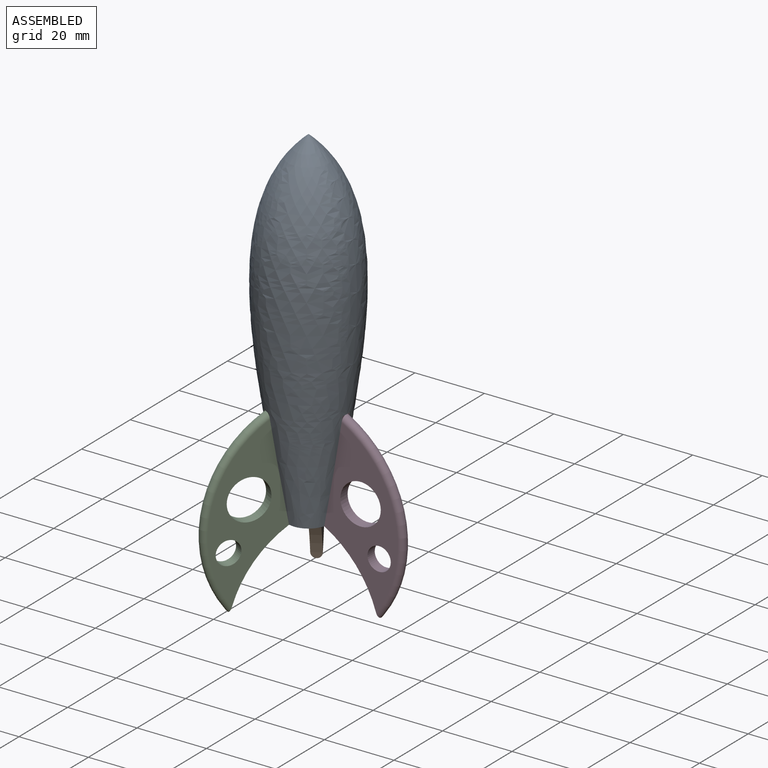
[diagram: assembled view]
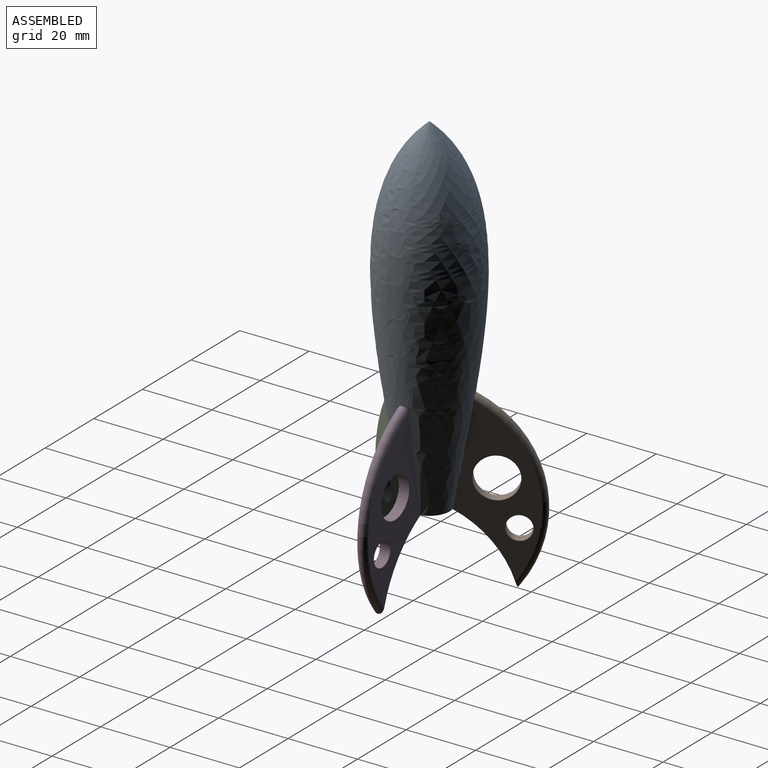
[diagram: assembled view, second angle]
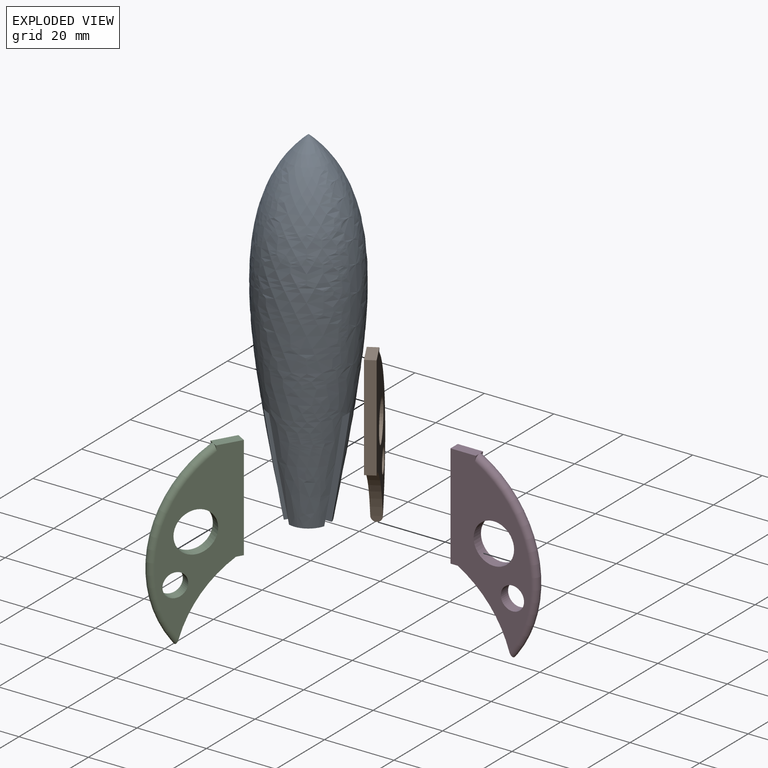
[diagram: exploded view]
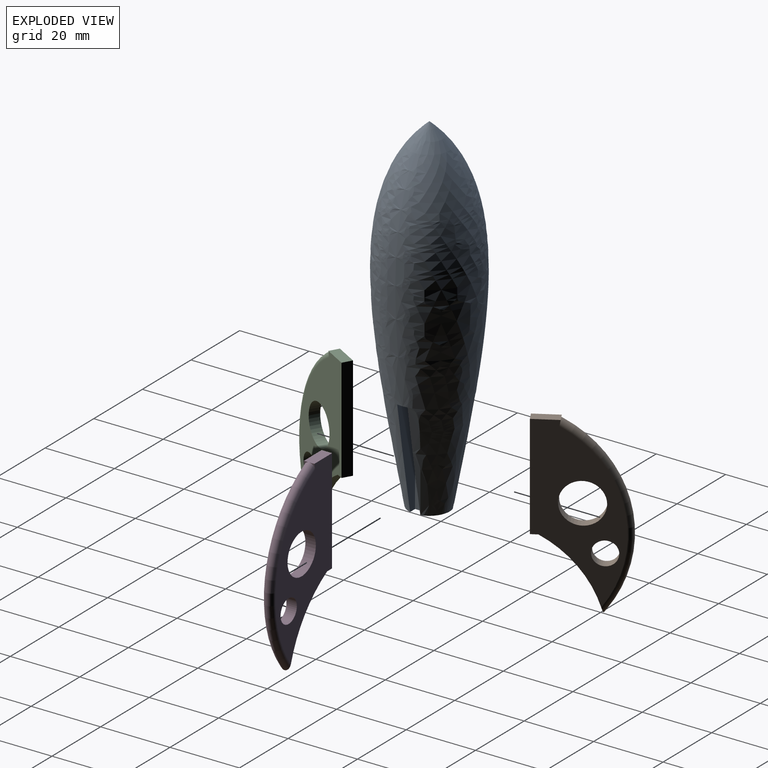
[diagram: exploded view, second angle]
ASSEMBLY  parts=4 mates=3
PART A: 14 faces, bbox 28x28x100 mm
  f0: revolved ~100x28.03mm, area 6551.8mm2, adj f1,f2,f3,f4,f6,f7,f8,f10
  f1: plane 11.78x11.61mm, normal (0,0,-1), area 89.1mm2, adj f0,f3,f4,f5,f7,f8,f9,f11
  f2: plane 7.83x6.27mm, normal (0,0,-1), area 22.2mm2, adj f0,f3,f4,f5
  f3: plane 30x6.35mm, normal (0.87,0.5,0), area 143.7mm2, adj f0,f1,f2,f5
  f4: plane 30x6.33mm, normal (-0.87,-0.5,0), area 142.5mm2, adj f0,f1,f2,f5
  f5: plane 30x2.6mm, normal (-0.5,0.87,0), area 90mm2, adj f1,f2,f3,f4
  f6: plane 7.85x6.25mm, normal (0,0,-1), area 22.2mm2, adj f0,f7,f8,f9
  f7: plane 30x6.35mm, normal (-0.87,0.5,0), area 143.7mm2, adj f0,f1,f6,f9
  f8: plane 30x6.33mm, normal (0.87,-0.5,0), area 142.5mm2, adj f0,f1,f6,f9
  f9: plane 30x2.6mm, normal (-0.5,-0.87,0), area 90mm2, adj f1,f6,f7,f8
  f10: plane 7.42x3mm, normal (0,0,-1), area 22.2mm2, adj f0,f11,f12,f13
  f11: plane 30x7.33mm, normal (0,-1,0), area 143.7mm2, adj f0,f1,f10,f13
  f12: plane 30x7.31mm, normal (0,1,0), area 142.5mm2, adj f0,f1,f10,f13
  f13: plane 30x3mm, normal (1,0,0), area 90mm2, adj f1,f10,f11,f12
PART B: 11 faces, bbox 15.7x24.7x54.4 mm
  f0: cylinder r=5.82mm len=11.65mm, axis (-0.87,0.5,0), area 109.8mm2, adj f3,f4
  f1: cylinder r=32.25mm len=20.22mm, axis (-0.87,0.5,0), area 77.1mm2, adj f3,f4,f5,f8
  f2: cylinder r=3.35mm len=7.31mm, axis (-0.87,0.5,0), area 63.2mm2, adj f3,f4
  f3: plane 48.42x20.16mm, normal (0.87,-0.5,0), area 580.2mm2, adj f0,f1,f2,f5,f7,f8,f9,f10
  f4: plane 48.42x20.16mm, normal (-0.87,0.5,0), area 580.2mm2, adj f0,f1,f2,f5,f6,f8,f9,f10
  f5: torus R=31.86mm, axis (-0.87,0.5,0), area 268mm2, adj f1,f3,f4,f6,f7
  f6: plane 1.56x1.3mm, normal (-0.49,-0.85,-0.17), area 0.5mm2, adj f4,f5,f9
  f7: plane 1.56x1.44mm, normal (-0.49,-0.85,-0.17), area 0.5mm2, adj f3,f5,f9
  f8: plane 3.62x3.27mm, normal (0,0,-1), area 6.1mm2, adj f1,f3,f4,f10
  f9: plane 7.83x6.25mm, normal (0,0,1), area 21.9mm2, adj f3,f4,f6,f7,f10
  f10: plane 30x2.6mm, normal (0.5,0.87,0), area 90mm2, adj f3,f4,f8,f9
PART C: same geometry as B
PART D: same geometry as B
PLACE A t=(-46.78,0.04,0)mm fixed
PLACE B rot(axis=(0,0,-1),120deg) t=(-46.58,0.15,0)mm
PLACE C t=(-46.78,0.04,0)mm
PLACE D rot(axis=(0,0,1),120deg) t=(-46.58,-0.08,0)mm
MATE parallel A.f5 <-> B.f10  axis (-0.5,0.87,0) through (-48.37,3.23,15.07)mm
MATE parallel A.f13 <-> D.f10  axis (1,0,0) through (-43.02,-0.07,15.07)mm
MATE parallel A.f9 <-> C.f10  axis (-0.5,-0.87,0) through (-48.55,-3.05,15.07)mm
